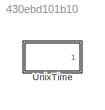
MODEL slx_430ebd101b10
KIND model
CONFIG AbsTol = auto
CONFIG EnableMultiTasking = off
CONFIG FixedStep = auto
CONFIG MaxStep = auto
CONFIG MinStep = auto
CONFIG RelTol = 1e-3
CONFIG SampleTimeConstraint = Unconstrained
CONFIG SolverName = VariableStepAuto
CONFIG StartTime = 0.0
CONFIG StopTime = 10.0
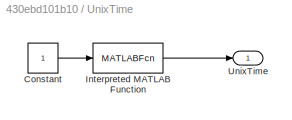
BLOCK [SubSystem] UnixTime
  Ports = [0, 1]
  RequestExecContextInheritance = off
BLOCK [Constant] UnixTime/Constant
BLOCK [MATLABFcn] UnixTime/Interpreted MATLAB Function
  MATLABFcn = now()
  Ports = [1, 1]
BLOCK [Outport] UnixTime/UnixTime
LINE UnixTime/Constant:1 -> UnixTime/Interpreted MATLAB Function:1
LINE UnixTime/Interpreted MATLAB Function:1 -> UnixTime/UnixTime:1
